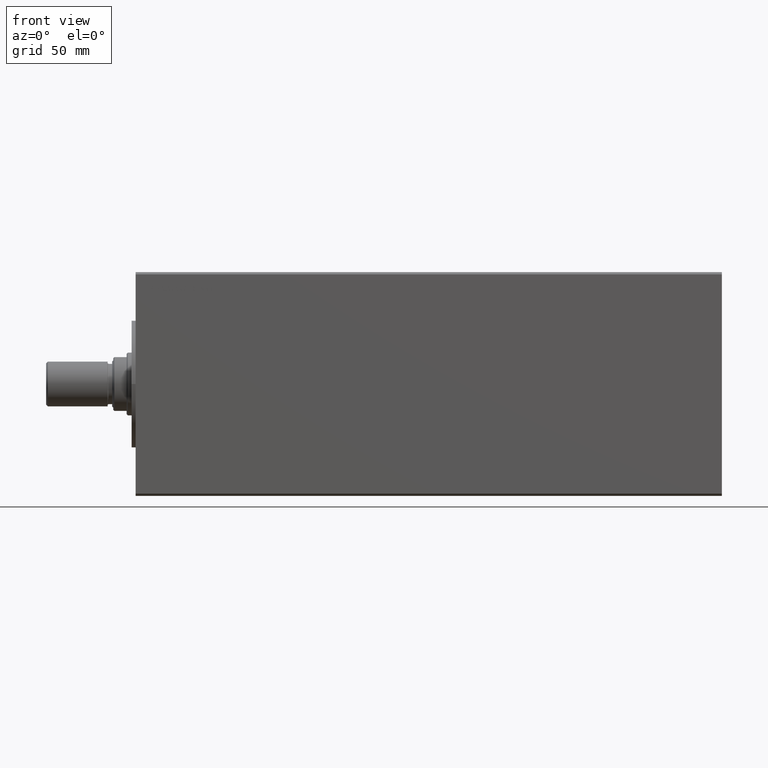
[diagram: clean part render]
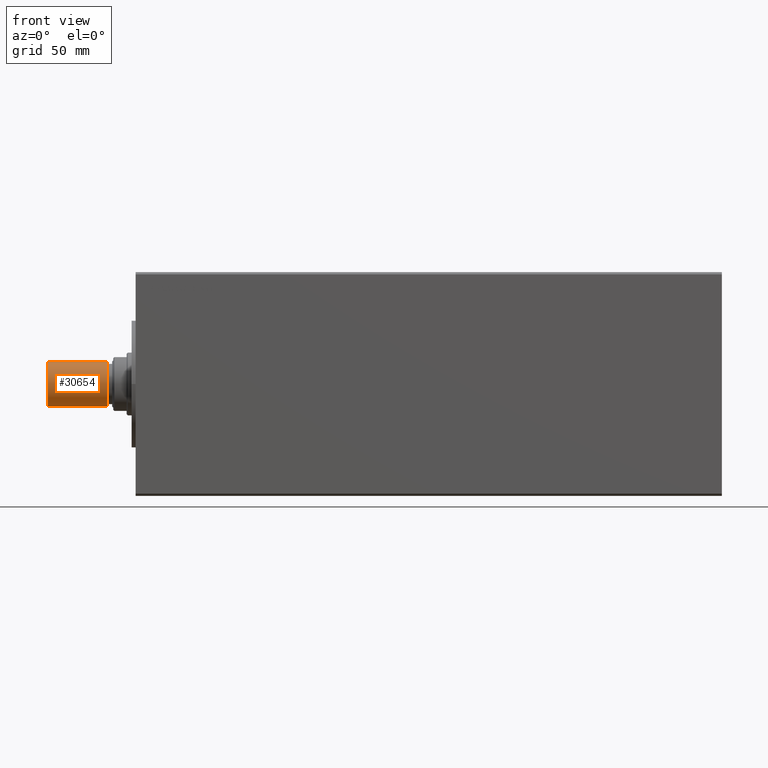
[diagram: same view with one face highlighted and labeled with its STEP entity id]
A machine part, front view. The second image highlights one B-rep face of the part: STEP entity #30654.
In plain terms, the highlighted cylindrical surface (edge-blend (fillet) strip) has radius 10 mm, axis along (-1, 0, 0).
Its self-contained STEP definition (entity closure, byte-faithful):
#1579 = VERTEX_POINT ( 'NONE', #23874 ) ;
#3452 = CARTESIAN_POINT ( 'NONE',  ( 10.00000000000000000, 1.224646799147353256E-15, 0.7999999999999986011 ) ) ;
#3505 = VERTEX_POINT ( 'NONE', #7194 ) ;
#3755 = LINE ( 'NONE', #14100, #12252 ) ;
#5317 = DIRECTION ( 'NONE',  ( -1.000000000000000000, 0.000000000000000000, 0.000000000000000000 ) ) ;
#6569 = CARTESIAN_POINT ( 'NONE',  ( 0.000000000000000000, 0.000000000000000000, 27.50000000000000000 ) ) ;
#7194 = CARTESIAN_POINT ( 'NONE',  ( 10.00000000000000000, 1.224646799147353256E-15, 27.50000000000000000 ) ) ;
#9948 = EDGE_CURVE ( 'NONE', #16036, #3505, #30054, .T. ) ;
#12252 = VECTOR ( 'NONE', #14550, 1000.000000000000000 ) ;
#12369 = CARTESIAN_POINT ( 'NONE',  ( 0.000000000000000000, 0.000000000000000000, 0.7999999999999986011 ) ) ;
#12581 = DIRECTION ( 'NONE',  ( 1.000000000000000000, 0.000000000000000000, 0.000000000000000000 ) ) ;
#12718 = DIRECTION ( 'NONE',  ( -0.000000000000000000, -0.000000000000000000, -1.000000000000000000 ) ) ;
#12939 = CARTESIAN_POINT ( 'NONE',  ( 0.000000000000000000, 0.000000000000000000, 27.50000000000000000 ) ) ;
#14100 = CARTESIAN_POINT ( 'NONE',  ( -10.00000000000000000, 0.000000000000000000, 27.50000000000000000 ) ) ;
#14550 = DIRECTION ( 'NONE',  ( -0.000000000000000000, -0.000000000000000000, -1.000000000000000000 ) ) ;
#14901 = EDGE_LOOP ( 'NONE', ( #27698, #38404, #24426, #22544 ) ) ;
#15491 = VECTOR ( 'NONE', #29396, 1000.000000000000000 ) ;
#16036 = VERTEX_POINT ( 'NONE', #39033 ) ;
#16183 = CIRCLE ( 'NONE', #36266, 10.00000000000000000 ) ;
#16493 = DIRECTION ( 'NONE',  ( 1.000000000000000000, 0.000000000000000000, 0.000000000000000000 ) ) ;
#16708 = AXIS2_PLACEMENT_3D ( 'NONE', #12939, #12718, #5317 ) ;
#18443 = EDGE_CURVE ( 'NONE', #16036, #1579, #3755, .T. ) ;
#22544 = ORIENTED_EDGE ( 'NONE', *, *, #27550, .T. ) ;
#22654 = LINE ( 'NONE', #25576, #15491 ) ;
#23874 = CARTESIAN_POINT ( 'NONE',  ( -10.00000000000000000, 0.000000000000000000, 0.7999999999999986011 ) ) ;
#24426 = ORIENTED_EDGE ( 'NONE', *, *, #18443, .T. ) ;
#25576 = CARTESIAN_POINT ( 'NONE',  ( 10.00000000000000000, 1.224646799147353256E-15, 27.50000000000000000 ) ) ;
#25777 = AXIS2_PLACEMENT_3D ( 'NONE', #6569, #40769, #16493 ) ;
#26969 = VERTEX_POINT ( 'NONE', #3452 ) ;
#27550 = EDGE_CURVE ( 'NONE', #1579, #26969, #16183, .T. ) ;
#27698 = ORIENTED_EDGE ( 'NONE', *, *, #37683, .F. ) ;
#29396 = DIRECTION ( 'NONE',  ( -0.000000000000000000, -0.000000000000000000, -1.000000000000000000 ) ) ;
#29806 = CYLINDRICAL_SURFACE ( 'NONE', #16708, 10.00000000000000000 ) ;
#30054 = CIRCLE ( 'NONE', #25777, 10.00000000000000000 ) ;
#30654 = ADVANCED_FACE ( 'NONE', ( #36560 ), #29806, .T. ) ;
#36266 = AXIS2_PLACEMENT_3D ( 'NONE', #12369, #43394, #12581 ) ;
#36560 = FACE_OUTER_BOUND ( 'NONE', #14901, .T. ) ;
#37683 = EDGE_CURVE ( 'NONE', #3505, #26969, #22654, .T. ) ;
#38404 = ORIENTED_EDGE ( 'NONE', *, *, #9948, .F. ) ;
#39033 = CARTESIAN_POINT ( 'NONE',  ( -10.00000000000000000, 0.000000000000000000, 27.50000000000000000 ) ) ;
#40769 = DIRECTION ( 'NONE',  ( 0.000000000000000000, 0.000000000000000000, 1.000000000000000000 ) ) ;
#43394 = DIRECTION ( 'NONE',  ( -0.000000000000000000, -0.000000000000000000, 1.000000000000000000 ) ) ;